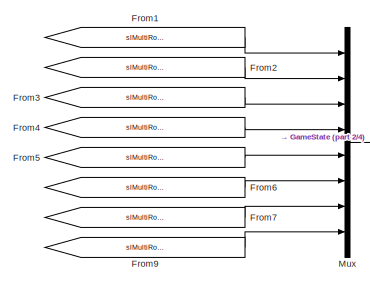
[diagram: root canvas - part 1/4, top center region]
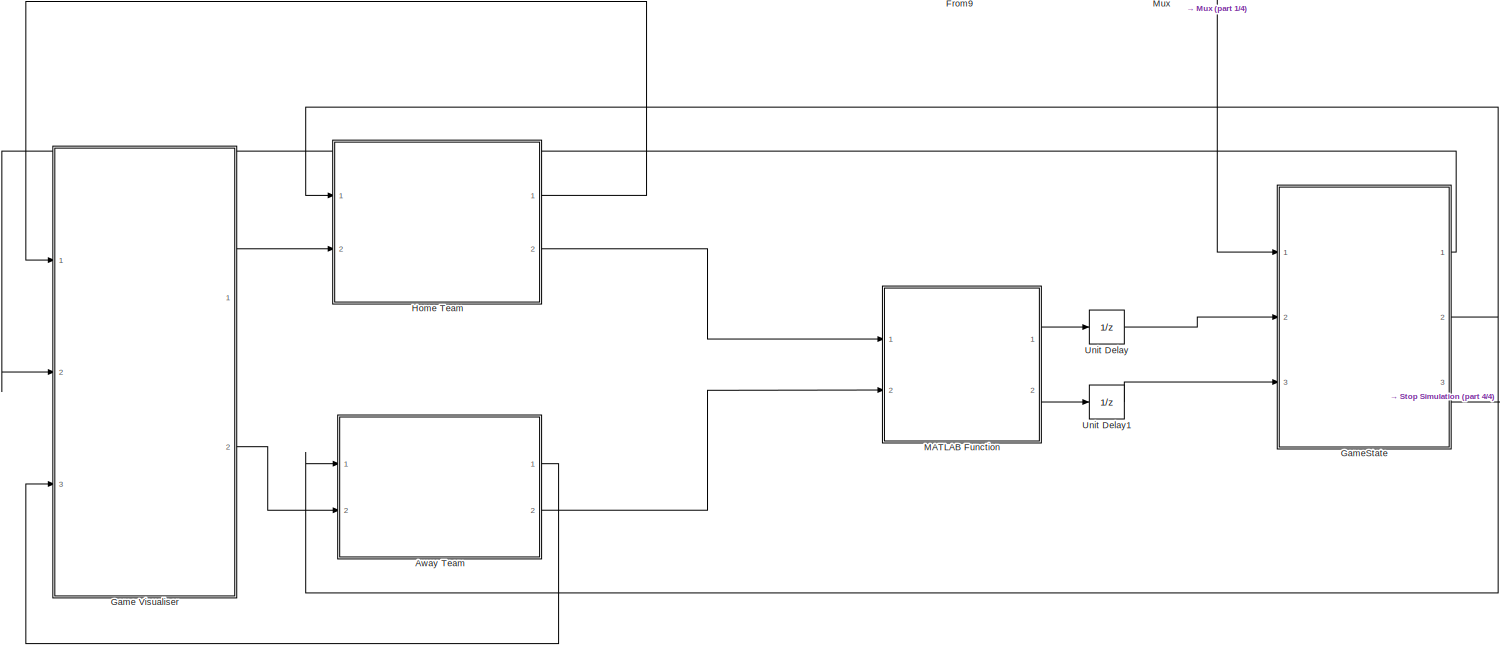
[diagram: root canvas - part 2/4, full width, middle band]
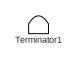
[diagram: root canvas - part 3/4, bottom right region]
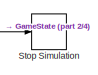
[diagram: root canvas - part 4/4, bottom right region]
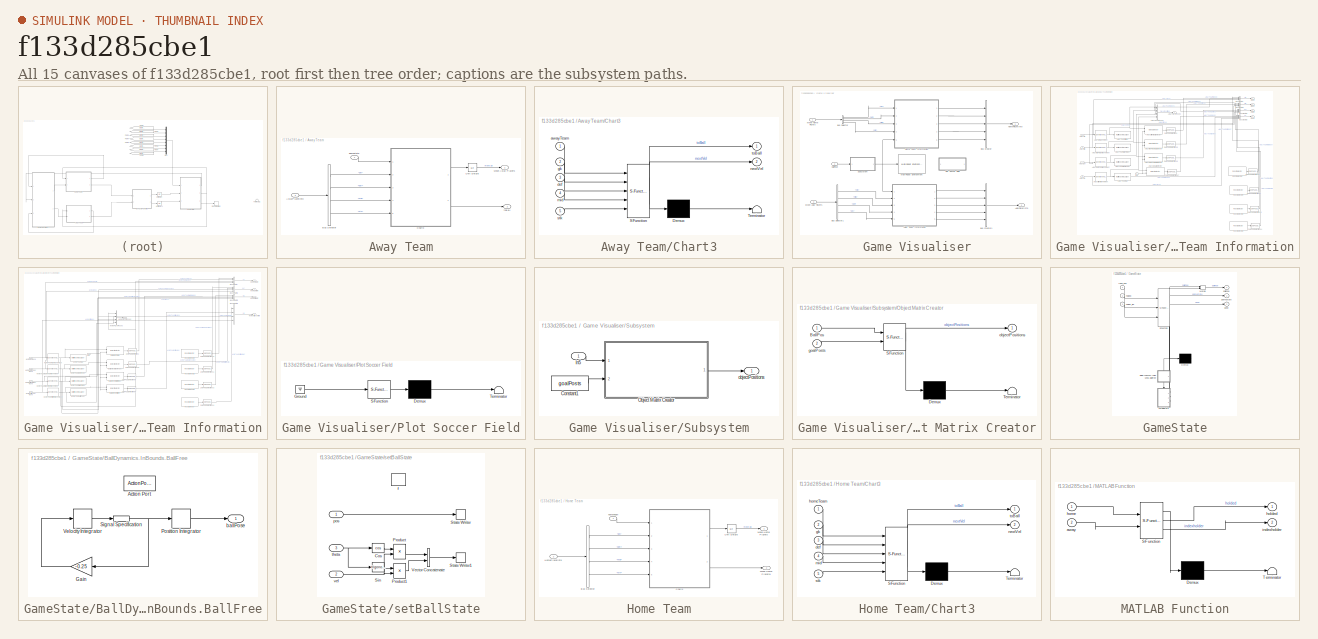
[diagram: thumbnail index - all 15 canvases of the model, root first then tree order]
MODEL slx_f133d285cbe1
KIND model
CONFIG AbsTol = auto
CONFIG EnableMultiTasking = on
CONFIG FixedStep = sampleTime
CONFIG MaxStep = auto
CONFIG MinStep = auto
CONFIG RelTol = 1e-3
CONFIG SampleTimeConstraint = Unconstrained
CONFIG SolverName = FixedStepAuto
CONFIG StartTime = 0.0
CONFIG StopTime = 200
BLOCK [SubSystem] Away Team
  Ports = [2, 2]
  RequestExecContextInheritance = off
BLOCK [Inport] Away Team/AwayPlayerInfo
  Port = 2
BLOCK [BusSelector] Away Team/Bus Selector
  OutputSignals = gk,def,mid,stk
  Ports = [1, 4]
BLOCK [SubSystem] Away Team/Chart3
  ErrorFcn = Stateflow.Translate.translate
  PermitHierarchicalResolution = ExplicitOnly
  PortSchema = {"entries":[{"content":{"sides":[{"content":{"connectorIds":["In1","In2","In3","In4","In5"]},"type":"ConnectorPlacement.EquallySpacedRectSide","uuid":"ebe0e1cb-6371-4bd3-ace0-cc5b71048631"},{"content":{"connectorIds":["Out2","Out1"],"side":"RIGHT"},"type":"ConnectorPlacement.EquallySpacedRectSide","uuid":"57a2731b-5a64-47ed-8ccc-f0829cfb4352"},{"content":{"connectorIds":[],"side":"TOP"},"type":"Co...<+415ch>
  Ports = [5, 2]
  RequestExecContextInheritance = off
  SFBlockType = Chart
  TreatAsAtomicUnit = on
BLOCK [Demux] Away Team/Chart3/ Demux 
  Outputs = 1
  Ports = [1, 1]
BLOCK [S-Function] Away Team/Chart3/ SFunction 
  EnableBusSupport = on
  FunctionName = sf_sfun
  Parameters = angThresh,distThresh,maxSpeed,maxTurnSpeed,playerIdx
  PortCounts = [5 3]
  Ports = [5, 3]
  SFcnIsStateOwnerBlock = off
  SFunctionDeploymentMode = off
  Tag = Stateflow S-Function 1
BLOCK [Terminator] Away Team/Chart3/ Terminator 
BLOCK [Inport] Away Team/Chart3/awayTeam
BLOCK [Inport] Away Team/Chart3/def
  Port = 3
BLOCK [Inport] Away Team/Chart3/gk
  Port = 2
BLOCK [Inport] Away Team/Chart3/mid
  Port = 4
BLOCK [Outport] Away Team/Chart3/nextVel
  Port = 2
BLOCK [Inport] Away Team/Chart3/stk
  Port = 5
BLOCK [Outport] Away Team/Chart3/toBall
BLOCK [Outport] Away Team/Move Away Players
BLOCK [UnitDelay] Away Team/Unit Delay5
  HasFrameUpgradeWarning = on
  SampleTime = -1
BLOCK [Inport] Away Team/gamestate
BLOCK [Outport] Away Team/toBall
  Port = 2
BLOCK [From] From1
  GotoTag = slMultiRobotEnv_Pose_1
  TagVisibility = global
BLOCK [From] From2
  GotoTag = slMultiRobotEnv_Pose_2
  TagVisibility = global
BLOCK [From] From3
  GotoTag = slMultiRobotEnv_Pose_3
  TagVisibility = global
BLOCK [From] From4
  GotoTag = slMultiRobotEnv_Pose_4
  TagVisibility = global
BLOCK [From] From5
  GotoTag = slMultiRobotEnv_Pose_5
  TagVisibility = global
BLOCK [From] From6
  GotoTag = slMultiRobotEnv_Pose_6
  TagVisibility = global
BLOCK [From] From7
  GotoTag = slMultiRobotEnv_Pose_7
  TagVisibility = global
BLOCK [From] From9
  GotoTag = slMultiRobotEnv_Pose_8
  TagVisibility = global
BLOCK [SubSystem] Game Visualiser
  Ports = [3, 2]
  RequestExecContextInheritance = off
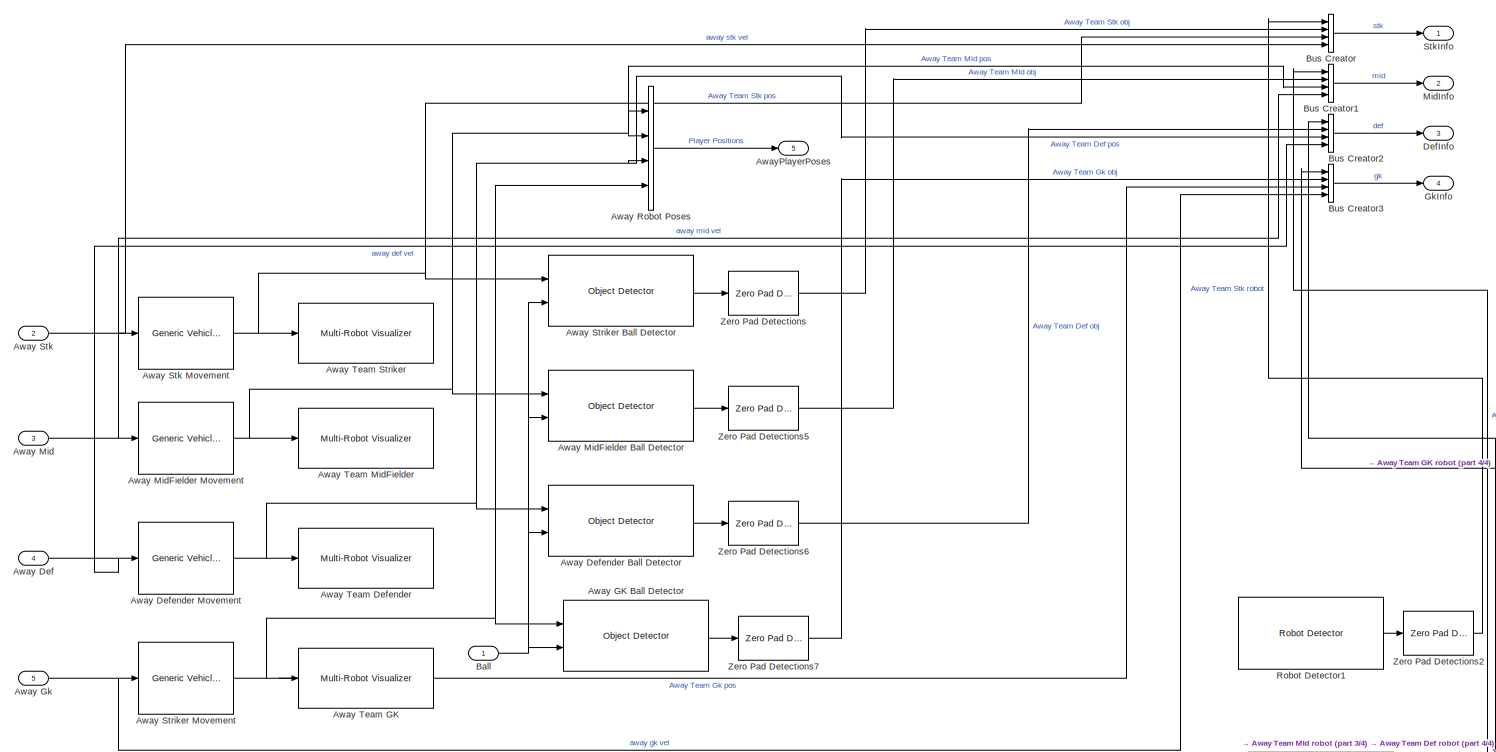
[diagram: Game Visualiser/Away Team Information - part 1/4, full width, middle band]
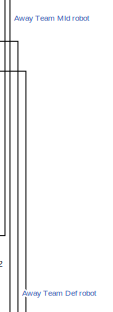
[diagram: Game Visualiser/Away Team Information - part 2/4, middle right region]
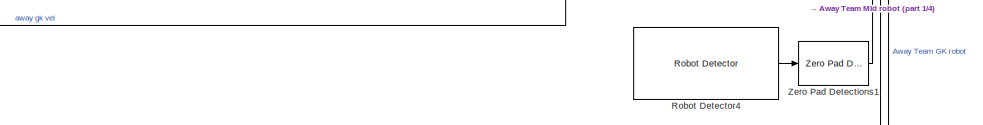
[diagram: Game Visualiser/Away Team Information - part 3/4, bottom right region]
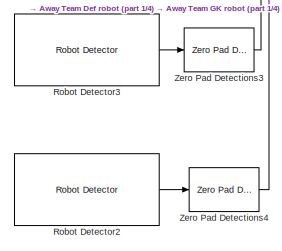
[diagram: Game Visualiser/Away Team Information - part 4/4, bottom right region]
BLOCK [SubSystem] Game Visualiser/Away Team Information
  Ports = [5, 5]
  RequestExecContextInheritance = off
BLOCK [Inport] Game Visualiser/Away Team Information/Away Def
  Port = 4
BLOCK [Reference] Game Visualiser/Away Team Information/Away Defender Ball Detector  REF=mobileRoboticsLib/Environments/Object Detector
  Ports = [2, 1]
  SourceBlock = mobileRoboticsLib/Environments/Object Detector
  SourceProductName = Mobile Robotics Simulation Toolbox
  SourceType = ObjectDetector
BLOCK [Reference] Game Visualiser/Away Team Information/Away Defender Movement  REF=mobileRoboticsLib/Utilities/Generic Vehicle Simulation
  Ports = [1, 1]
  SourceBlock = mobileRoboticsLib/Utilities/Generic Vehicle Simulation
  SourceProductName = Mobile Robotics Simulation Toolbox
  SourceType = Generic Vehicle Simulation
BLOCK [Reference] Game Visualiser/Away Team Information/Away GK Ball Detector  REF=mobileRoboticsLib/Environments/Object Detector
  Ports = [2, 1]
  SourceBlock = mobileRoboticsLib/Environments/Object Detector
  SourceProductName = Mobile Robotics Simulation Toolbox
  SourceType = ObjectDetector
BLOCK [Inport] Game Visualiser/Away Team Information/Away Gk 
  Port = 5
BLOCK [Inport] Game Visualiser/Away Team Information/Away Mid
  Port = 3
BLOCK [Reference] Game Visualiser/Away Team Information/Away MidFielder Ball Detector  REF=mobileRoboticsLib/Environments/Object Detector
  Ports = [2, 1]
  SourceBlock = mobileRoboticsLib/Environments/Object Detector
  SourceProductName = Mobile Robotics Simulation Toolbox
  SourceType = ObjectDetector
BLOCK [Reference] Game Visualiser/Away Team Information/Away MidFielder Movement  REF=mobileRoboticsLib/Utilities/Generic Vehicle Simulation
  Ports = [1, 1]
  SourceBlock = mobileRoboticsLib/Utilities/Generic Vehicle Simulation
  SourceProductName = Mobile Robotics Simulation Toolbox
  SourceType = Generic Vehicle Simulation
BLOCK [BusCreator] Game Visualiser/Away Team Information/Away Robot Poses
  DisplayOption = bar
  InheritFromInputs = on
  Inputs = 4
  Ports = [4, 1]
BLOCK [Inport] Game Visualiser/Away Team Information/Away Stk
  Port = 2
BLOCK [Reference] Game Visualiser/Away Team Information/Away Stk Movement  REF=mobileRoboticsLib/Utilities/Generic Vehicle Simulation
  Ports = [1, 1]
  SourceBlock = mobileRoboticsLib/Utilities/Generic Vehicle Simulation
  SourceProductName = Mobile Robotics Simulation Toolbox
  SourceType = Generic Vehicle Simulation
BLOCK [Reference] Game Visualiser/Away Team Information/Away Striker Ball Detector  REF=mobileRoboticsLib/Environments/Object Detector
  Ports = [2, 1]
  SourceBlock = mobileRoboticsLib/Environments/Object Detector
  SourceProductName = Mobile Robotics Simulation Toolbox
  SourceType = ObjectDetector
BLOCK [Reference] Game Visualiser/Away Team Information/Away Striker Movement  REF=mobileRoboticsLib/Utilities/Generic Vehicle Simulation
  Ports = [1, 1]
  SourceBlock = mobileRoboticsLib/Utilities/Generic Vehicle Simulation
  SourceProductName = Mobile Robotics Simulation Toolbox
  SourceType = Generic Vehicle Simulation
BLOCK [Reference] Game Visualiser/Away Team Information/Away Team Defender  REF=mobileRoboticsLib/Environments/Multi-Robot Visualizer
  Ports = [1]
  SourceBlock = mobileRoboticsLib/Environments/Multi-Robot Visualizer
  SourceProductName = Mobile Robotics Simulation Toolbox
  SourceType = Multi-Robot Visualizer
BLOCK [Reference] Game Visualiser/Away Team Information/Away Team GK  REF=mobileRoboticsLib/Environments/Multi-Robot Visualizer
  Ports = [1]
  SourceBlock = mobileRoboticsLib/Environments/Multi-Robot Visualizer
  SourceProductName = Mobile Robotics Simulation Toolbox
  SourceType = Multi-Robot Visualizer
BLOCK [Reference] Game Visualiser/Away Team Information/Away Team MidFielder  REF=mobileRoboticsLib/Environments/Multi-Robot Visualizer
  Ports = [1]
  SourceBlock = mobileRoboticsLib/Environments/Multi-Robot Visualizer
  SourceProductName = Mobile Robotics Simulation Toolbox
  SourceType = Multi-Robot Visualizer
BLOCK [Reference] Game Visualiser/Away Team Information/Away Team Striker  REF=mobileRoboticsLib/Environments/Multi-Robot Visualizer
  Ports = [1]
  SourceBlock = mobileRoboticsLib/Environments/Multi-Robot Visualizer
  SourceProductName = Mobile Robotics Simulation Toolbox
  SourceType = Multi-Robot Visualizer
BLOCK [Outport] Game Visualiser/Away Team Information/AwayPlayerPoses
  Port = 5
BLOCK [Inport] Game Visualiser/Away Team Information/Ball
BLOCK [BusCreator] Game Visualiser/Away Team Information/Bus Creator
  DisplayOption = bar
  InheritFromInputs = off
  Inputs = 4
  OutDataTypeStr = Bus: PlayerStateBus
  Ports = [4, 1]
BLOCK [BusCreator] Game Visualiser/Away Team Information/Bus Creator1
  DisplayOption = bar
  InheritFromInputs = off
  Inputs = 4
  OutDataTypeStr = Bus: PlayerStateBus
  Ports = [4, 1]
BLOCK [BusCreator] Game Visualiser/Away Team Information/Bus Creator2
  DisplayOption = bar
  InheritFromInputs = off
  Inputs = 4
  OutDataTypeStr = Bus: PlayerStateBus
  Ports = [4, 1]
BLOCK [BusCreator] Game Visualiser/Away Team Information/Bus Creator3
  DisplayOption = bar
  InheritFromInputs = off
  Inputs = 4
  OutDataTypeStr = Bus: PlayerStateBus
  Ports = [4, 1]
BLOCK [Outport] Game Visualiser/Away Team Information/DefInfo
  Port = 3
BLOCK [Outport] Game Visualiser/Away Team Information/GkInfo
  Port = 4
BLOCK [Outport] Game Visualiser/Away Team Information/MidInfo
  Port = 2
BLOCK [Reference] Game Visualiser/Away Team Information/Robot Detector1  REF=mobileRoboticsLib/Environments/Robot Detector
  Ports = [0, 1]
  SourceBlock = mobileRoboticsLib/Environments/Robot Detector
  SourceProductName = Mobile Robotics Simulation Toolbox
  SourceType = Robot Detector
BLOCK [Reference] Game Visualiser/Away Team Information/Robot Detector2  REF=mobileRoboticsLib/Environments/Robot Detector
  Ports = [0, 1]
  SourceBlock = mobileRoboticsLib/Environments/Robot Detector
  SourceProductName = Mobile Robotics Simulation Toolbox
  SourceType = Robot Detector
BLOCK [Reference] Game Visualiser/Away Team Information/Robot Detector3  REF=mobileRoboticsLib/Environments/Robot Detector
  Ports = [0, 1]
  SourceBlock = mobileRoboticsLib/Environments/Robot Detector
  SourceProductName = Mobile Robotics Simulation Toolbox
  SourceType = Robot Detector
BLOCK [Reference] Game Visualiser/Away Team Information/Robot Detector4  REF=mobileRoboticsLib/Environments/Robot Detector
  Ports = [0, 1]
  SourceBlock = mobileRoboticsLib/Environments/Robot Detector
  SourceProductName = Mobile Robotics Simulation Toolbox
  SourceType = Robot Detector
BLOCK [Outport] Game Visualiser/Away Team Information/StkInfo
BLOCK [Reference] Game Visualiser/Away Team Information/Zero Pad Detections  REF=soccerRobotLib/Soccer Robot Simulator/Zero Pad Detections
  Ports = [1, 1]
  SourceBlock = soccerRobotLib/Soccer Robot Simulator/Zero Pad Detections
  SourceType = Zero Pad Detections
BLOCK [Reference] Game Visualiser/Away Team Information/Zero Pad Detections1  REF=soccerRobotLib/Soccer Robot Simulator/Zero Pad Detections
  Ports = [1, 1]
  SourceBlock = soccerRobotLib/Soccer Robot Simulator/Zero Pad Detections
  SourceType = Zero Pad Detections
BLOCK [Reference] Game Visualiser/Away Team Information/Zero Pad Detections2  REF=soccerRobotLib/Soccer Robot Simulator/Zero Pad Detections
  Ports = [1, 1]
  SourceBlock = soccerRobotLib/Soccer Robot Simulator/Zero Pad Detections
  SourceType = Zero Pad Detections
BLOCK [Reference] Game Visualiser/Away Team Information/Zero Pad Detections3  REF=soccerRobotLib/Soccer Robot Simulator/Zero Pad Detections
  Ports = [1, 1]
  SourceBlock = soccerRobotLib/Soccer Robot Simulator/Zero Pad Detections
  SourceType = Zero Pad Detections
BLOCK [Reference] Game Visualiser/Away Team Information/Zero Pad Detections4  REF=soccerRobotLib/Soccer Robot Simulator/Zero Pad Detections
  Ports = [1, 1]
  SourceBlock = soccerRobotLib/Soccer Robot Simulator/Zero Pad Detections
  SourceType = Zero Pad Detections
BLOCK [Reference] Game Visualiser/Away Team Information/Zero Pad Detections5  REF=soccerRobotLib/Soccer Robot Simulator/Zero Pad Detections
  Ports = [1, 1]
  SourceBlock = soccerRobotLib/Soccer Robot Simulator/Zero Pad Detections
  SourceType = Zero Pad Detections
BLOCK [Reference] Game Visualiser/Away Team Information/Zero Pad Detections6  REF=soccerRobotLib/Soccer Robot Simulator/Zero Pad Detections
  Ports = [1, 1]
  SourceBlock = soccerRobotLib/Soccer Robot Simulator/Zero Pad Detections
  SourceType = Zero Pad Detections
BLOCK [Reference] Game Visualiser/Away Team Information/Zero Pad Detections7  REF=soccerRobotLib/Soccer Robot Simulator/Zero Pad Detections
  Ports = [1, 1]
  SourceBlock = soccerRobotLib/Soccer Robot Simulator/Zero Pad Detections
  SourceType = Zero Pad Detections
BLOCK [Outport] Game Visualiser/AwayPlayerInfo
  Port = 2
BLOCK [BusCreator] Game Visualiser/Bus Creator
  DisplayOption = bar
  InheritFromInputs = on
  Inputs = 5
  Ports = [5, 1]
BLOCK [BusCreator] Game Visualiser/Bus Creator1
  DisplayOption = bar
  InheritFromInputs = on
  Inputs = 5
  Ports = [5, 1]
BLOCK [BusSelector] Game Visualiser/Bus Selector
  OutputSignals = gk,def,mid,stk
  Ports = [1, 4]
BLOCK [BusSelector] Game Visualiser/Bus Selector1
  OutputSignals = stk,mid,def,gk
  Ports = [1, 4]
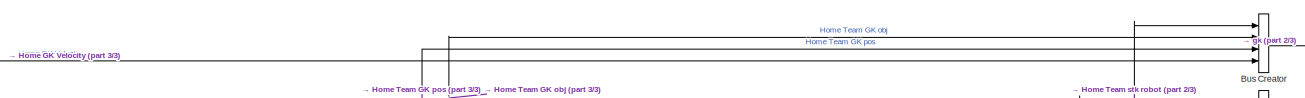
[diagram: Game Visualiser/Home Team Information - part 1/3, top center region]
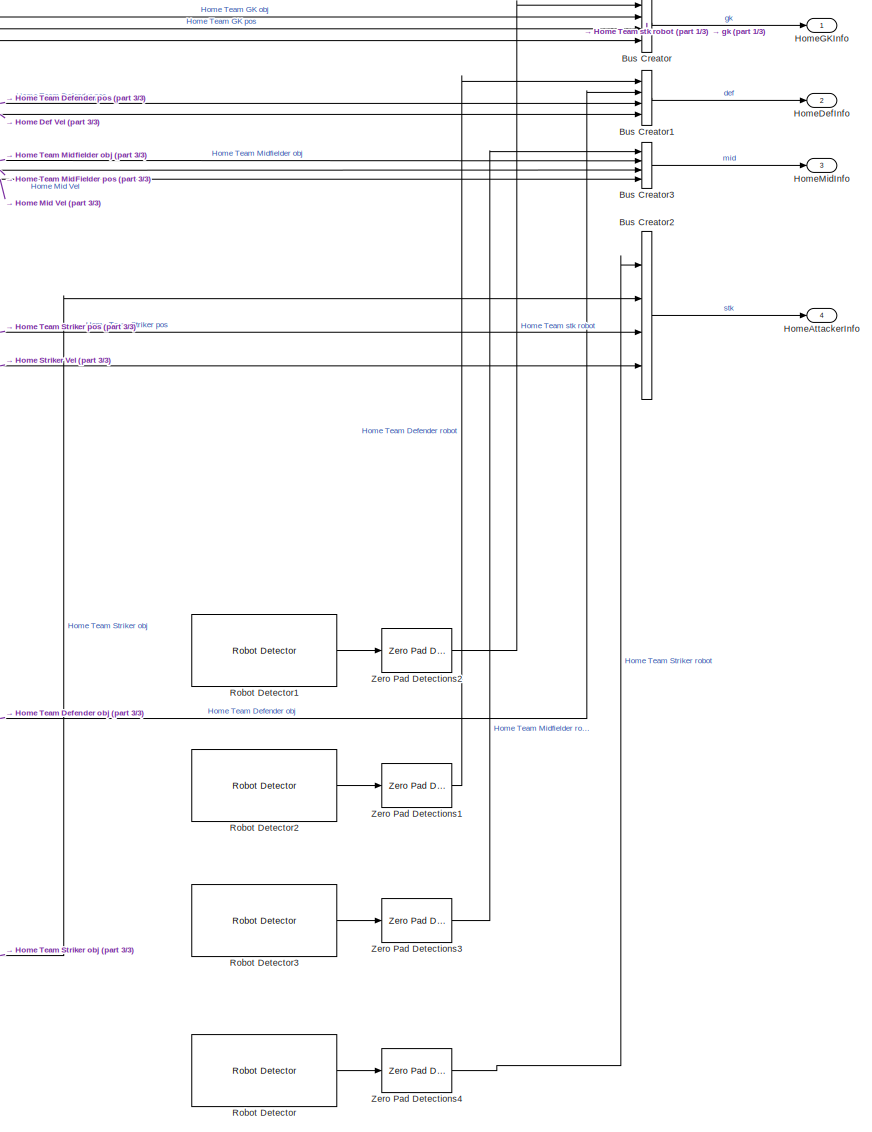
[diagram: Game Visualiser/Home Team Information - part 2/3, right side, full height]
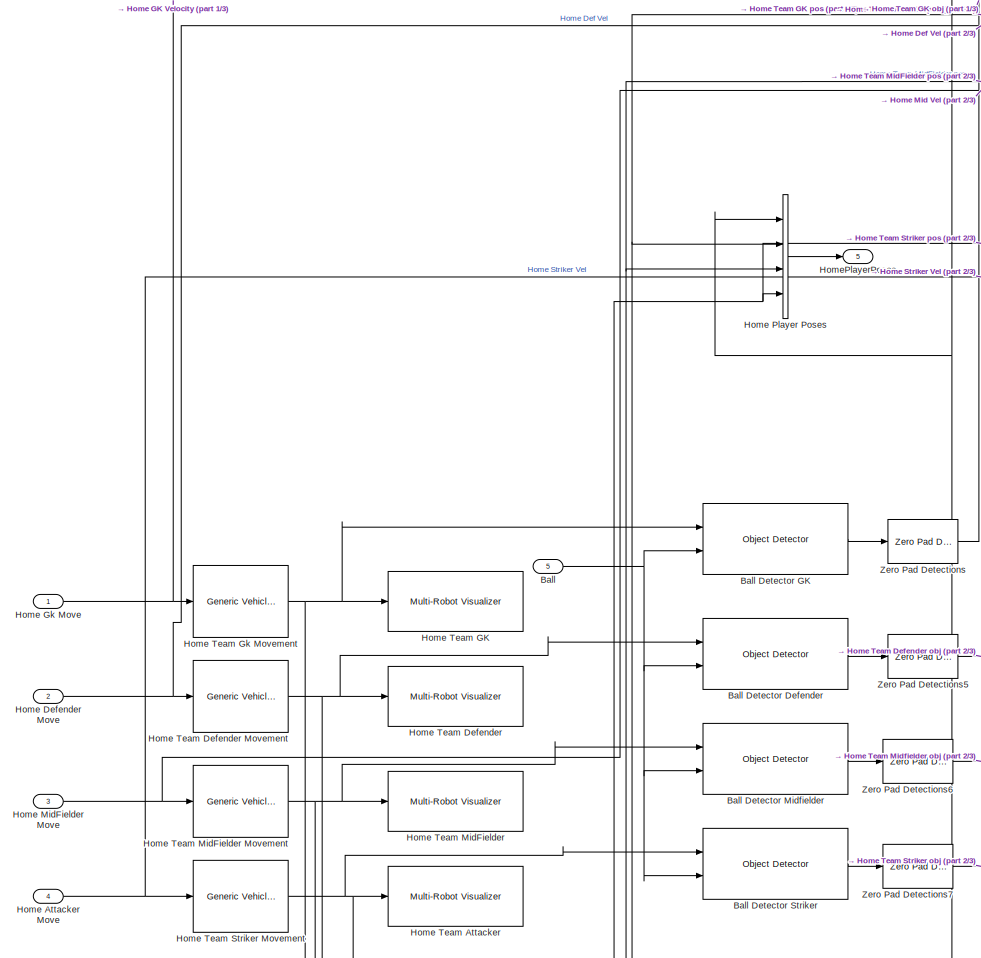
[diagram: Game Visualiser/Home Team Information - part 3/3, left side, full height]
BLOCK [SubSystem] Game Visualiser/Home Team Information
  Ports = [5, 5]
  RequestExecContextInheritance = off
BLOCK [Inport] Game Visualiser/Home Team Information/Ball
  Port = 5
BLOCK [Reference] Game Visualiser/Home Team Information/Ball Detector Defender  REF=mobileRoboticsLib/Environments/Object Detector
  Ports = [2, 1]
  SourceBlock = mobileRoboticsLib/Environments/Object Detector
  SourceProductName = Mobile Robotics Simulation Toolbox
  SourceType = ObjectDetector
BLOCK [Reference] Game Visualiser/Home Team Information/Ball Detector GK  REF=mobileRoboticsLib/Environments/Object Detector
  Ports = [2, 1]
  SourceBlock = mobileRoboticsLib/Environments/Object Detector
  SourceProductName = Mobile Robotics Simulation Toolbox
  SourceType = ObjectDetector
BLOCK [Reference] Game Visualiser/Home Team Information/Ball Detector Midfielder  REF=mobileRoboticsLib/Environments/Object Detector
  Ports = [2, 1]
  SourceBlock = mobileRoboticsLib/Environments/Object Detector
  SourceProductName = Mobile Robotics Simulation Toolbox
  SourceType = ObjectDetector
BLOCK [Reference] Game Visualiser/Home Team Information/Ball Detector Striker  REF=mobileRoboticsLib/Environments/Object Detector
  Ports = [2, 1]
  SourceBlock = mobileRoboticsLib/Environments/Object Detector
  SourceProductName = Mobile Robotics Simulation Toolbox
  SourceType = ObjectDetector
BLOCK [BusCreator] Game Visualiser/Home Team Information/Bus Creator
  DisplayOption = bar
  InheritFromInputs = off
  Inputs = 4
  OutDataTypeStr = Bus: PlayerStateBus
  Ports = [4, 1]
BLOCK [BusCreator] Game Visualiser/Home Team Information/Bus Creator1
  DisplayOption = bar
  InheritFromInputs = on
  Inputs = 4
  OutDataTypeStr = Bus: PlayerStateBus
  Ports = [4, 1]
BLOCK [BusCreator] Game Visualiser/Home Team Information/Bus Creator2
  DisplayOption = bar
  InheritFromInputs = on
  Inputs = 4
  OutDataTypeStr = Bus: PlayerStateBus
  Ports = [4, 1]
BLOCK [BusCreator] Game Visualiser/Home Team Information/Bus Creator3
  DisplayOption = bar
  InheritFromInputs = on
  Inputs = 4
  OutDataTypeStr = Bus: PlayerStateBus
  Ports = [4, 1]
BLOCK [Inport] Game Visualiser/Home Team Information/Home Attacker Move
  Port = 4
BLOCK [Inport] Game Visualiser/Home Team Information/Home Defender Move
  Port = 2
BLOCK [Inport] Game Visualiser/Home Team Information/Home Gk Move
BLOCK [Inport] Game Visualiser/Home Team Information/Home MidFielder Move
  Port = 3
BLOCK [BusCreator] Game Visualiser/Home Team Information/Home Player Poses
  DisplayOption = bar
  InheritFromInputs = on
  Inputs = 4
  Ports = [4, 1]
BLOCK [Reference] Game Visualiser/Home Team Information/Home Team Attacker  REF=mobileRoboticsLib/Environments/Multi-Robot Visualizer
  Ports = [1]
  SourceBlock = mobileRoboticsLib/Environments/Multi-Robot Visualizer
  SourceProductName = Mobile Robotics Simulation Toolbox
  SourceType = Multi-Robot Visualizer
BLOCK [Reference] Game Visualiser/Home Team Information/Home Team Defender  REF=mobileRoboticsLib/Environments/Multi-Robot Visualizer
  Ports = [1]
  SourceBlock = mobileRoboticsLib/Environments/Multi-Robot Visualizer
  SourceProductName = Mobile Robotics Simulation Toolbox
  SourceType = Multi-Robot Visualizer
BLOCK [Reference] Game Visualiser/Home Team Information/Home Team Defender Movement  REF=mobileRoboticsLib/Utilities/Generic Vehicle Simulation
  Ports = [1, 1]
  SourceBlock = mobileRoboticsLib/Utilities/Generic Vehicle Simulation
  SourceProductName = Mobile Robotics Simulation Toolbox
  SourceType = Generic Vehicle Simulation
BLOCK [Reference] Game Visualiser/Home Team Information/Home Team GK  REF=mobileRoboticsLib/Environments/Multi-Robot Visualizer
  Ports = [1]
  SourceBlock = mobileRoboticsLib/Environments/Multi-Robot Visualizer
  SourceProductName = Mobile Robotics Simulation Toolbox
  SourceType = Multi-Robot Visualizer
BLOCK [Reference] Game Visualiser/Home Team Information/Home Team Gk Movement  REF=mobileRoboticsLib/Utilities/Generic Vehicle Simulation
  Ports = [1, 1]
  SourceBlock = mobileRoboticsLib/Utilities/Generic Vehicle Simulation
  SourceProductName = Mobile Robotics Simulation Toolbox
  SourceType = Generic Vehicle Simulation
BLOCK [Reference] Game Visualiser/Home Team Information/Home Team MidFielder  REF=mobileRoboticsLib/Environments/Multi-Robot Visualizer
  Ports = [1]
  SourceBlock = mobileRoboticsLib/Environments/Multi-Robot Visualizer
  SourceProductName = Mobile Robotics Simulation Toolbox
  SourceType = Multi-Robot Visualizer
BLOCK [Reference] Game Visualiser/Home Team Information/Home Team MidFielder Movement  REF=mobileRoboticsLib/Utilities/Generic Vehicle Simulation
  Ports = [1, 1]
  SourceBlock = mobileRoboticsLib/Utilities/Generic Vehicle Simulation
  SourceProductName = Mobile Robotics Simulation Toolbox
  SourceType = Generic Vehicle Simulation
BLOCK [Reference] Game Visualiser/Home Team Information/Home Team Striker Movement  REF=mobileRoboticsLib/Utilities/Generic Vehicle Simulation
  Ports = [1, 1]
  SourceBlock = mobileRoboticsLib/Utilities/Generic Vehicle Simulation
  SourceProductName = Mobile Robotics Simulation Toolbox
  SourceType = Generic Vehicle Simulation
BLOCK [Outport] Game Visualiser/Home Team Information/HomeAttackerInfo
  Port = 4
BLOCK [Outport] Game Visualiser/Home Team Information/HomeDefInfo
  Port = 2
BLOCK [Outport] Game Visualiser/Home Team Information/HomeGKInfo
BLOCK [Outport] Game Visualiser/Home Team Information/HomeMidInfo
  Port = 3
BLOCK [Outport] Game Visualiser/Home Team Information/HomePlayerPoses
  Port = 5
BLOCK [Reference] Game Visualiser/Home Team Information/Robot Detector  REF=mobileRoboticsLib/Environments/Robot Detector
  Ports = [0, 1]
  SourceBlock = mobileRoboticsLib/Environments/Robot Detector
  SourceProductName = Mobile Robotics Simulation Toolbox
  SourceType = Robot Detector
BLOCK [Reference] Game Visualiser/Home Team Information/Robot Detector1  REF=mobileRoboticsLib/Environments/Robot Detector
  Ports = [0, 1]
  SourceBlock = mobileRoboticsLib/Environments/Robot Detector
  SourceProductName = Mobile Robotics Simulation Toolbox
  SourceType = Robot Detector
BLOCK [Reference] Game Visualiser/Home Team Information/Robot Detector2  REF=mobileRoboticsLib/Environments/Robot Detector
  Ports = [0, 1]
  SourceBlock = mobileRoboticsLib/Environments/Robot Detector
  SourceProductName = Mobile Robotics Simulation Toolbox
  SourceType = Robot Detector
BLOCK [Reference] Game Visualiser/Home Team Information/Robot Detector3  REF=mobileRoboticsLib/Environments/Robot Detector
  Ports = [0, 1]
  SourceBlock = mobileRoboticsLib/Environments/Robot Detector
  SourceProductName = Mobile Robotics Simulation Toolbox
  SourceType = Robot Detector
BLOCK [Reference] Game Visualiser/Home Team Information/Zero Pad Detections  REF=soccerRobotLib/Soccer Robot Simulator/Zero Pad Detections
  Ports = [1, 1]
  SourceBlock = soccerRobotLib/Soccer Robot Simulator/Zero Pad Detections
  SourceType = Zero Pad Detections
BLOCK [Reference] Game Visualiser/Home Team Information/Zero Pad Detections1  REF=soccerRobotLib/Soccer Robot Simulator/Zero Pad Detections
  Ports = [1, 1]
  SourceBlock = soccerRobotLib/Soccer Robot Simulator/Zero Pad Detections
  SourceType = Zero Pad Detections
BLOCK [Reference] Game Visualiser/Home Team Information/Zero Pad Detections2  REF=soccerRobotLib/Soccer Robot Simulator/Zero Pad Detections
  Ports = [1, 1]
  SourceBlock = soccerRobotLib/Soccer Robot Simulator/Zero Pad Detections
  SourceType = Zero Pad Detections
BLOCK [Reference] Game Visualiser/Home Team Information/Zero Pad Detections3  REF=soccerRobotLib/Soccer Robot Simulator/Zero Pad Detections
  Ports = [1, 1]
  SourceBlock = soccerRobotLib/Soccer Robot Simulator/Zero Pad Detections
  SourceType = Zero Pad Detections
BLOCK [Reference] Game Visualiser/Home Team Information/Zero Pad Detections4  REF=soccerRobotLib/Soccer Robot Simulator/Zero Pad Detections
  Ports = [1, 1]
  SourceBlock = soccerRobotLib/Soccer Robot Simulator/Zero Pad Detections
  SourceType = Zero Pad Detections
BLOCK [Reference] Game Visualiser/Home Team Information/Zero Pad Detections5  REF=soccerRobotLib/Soccer Robot Simulator/Zero Pad Detections
  Ports = [1, 1]
  SourceBlock = soccerRobotLib/Soccer Robot Simulator/Zero Pad Detections
  SourceType = Zero Pad Detections
BLOCK [Reference] Game Visualiser/Home Team Information/Zero Pad Detections6  REF=soccerRobotLib/Soccer Robot Simulator/Zero Pad Detections
  Ports = [1, 1]
  SourceBlock = soccerRobotLib/Soccer Robot Simulator/Zero Pad Detections
  SourceType = Zero Pad Detections
BLOCK [Reference] Game Visualiser/Home Team Information/Zero Pad Detections7  REF=soccerRobotLib/Soccer Robot Simulator/Zero Pad Detections
  Ports = [1, 1]
  SourceBlock = soccerRobotLib/Soccer Robot Simulator/Zero Pad Detections
  SourceType = Zero Pad Detections
BLOCK [Outport] Game Visualiser/HomePlayerInfo
BLOCK [Inport] Game Visualiser/Move Away Players
  Port = 3
BLOCK [Inport] Game Visualiser/Move Home Players
BLOCK [Reference] Game Visualiser/Multi-Robot Environment  REF=mobileRoboticsLib/Environments/Multi-Robot Environment
  Ports = [1]
  SourceBlock = mobileRoboticsLib/Environments/Multi-Robot Environment
  SourceProductName = Mobile Robotics Simulation Toolbox
  SourceType = Multi-Robot Environment
BLOCK [SubSystem] Game Visualiser/Plot Soccer Field
  ErrorFcn = Stateflow.Translate.translate
  PermitHierarchicalResolution = ExplicitOnly
  Ports = []
  RequestExecContextInheritance = off
  SFBlockType = MATLAB Function
  TreatAsAtomicUnit = on
BLOCK [Demux] Game Visualiser/Plot Soccer Field/ Demux 
  Outputs = 1
  Ports = [1, 1]
BLOCK [Ground] Game Visualiser/Plot Soccer Field/ Ground 
BLOCK [S-Function] Game Visualiser/Plot Soccer Field/ SFunction 
  EnableBusSupport = on
  FunctionName = sf_sfun
  PortCounts = [1 1]
  Ports = [1, 1]
  SFcnIsStateOwnerBlock = off
  SFunctionDeploymentMode = off
  Tag = Stateflow S-Function 2
BLOCK [Terminator] Game Visualiser/Plot Soccer Field/ Terminator 
BLOCK [SubSystem] Game Visualiser/Subsystem
  Ports = [1, 1]
  RequestExecContextInheritance = off
BLOCK [Constant] Game Visualiser/Subsystem/Constant1
  Value = goalPosts
BLOCK [Inport] Game Visualiser/Subsystem/In5
BLOCK [SubSystem] Game Visualiser/Subsystem/Object Matrix Creator
  ErrorFcn = Stateflow.Translate.translate
  PermitHierarchicalResolution = ExplicitOnly
  Ports = [2, 1]
  RequestExecContextInheritance = off
  SFBlockType = MATLAB Function
  TreatAsAtomicUnit = on
BLOCK [Demux] Game Visualiser/Subsystem/Object Matrix Creator/ Demux 
  Outputs = 1
  Ports = [1, 1]
BLOCK [S-Function] Game Visualiser/Subsystem/Object Matrix Creator/ SFunction 
  EnableBusSupport = on
  FunctionName = sf_sfun
  PortCounts = [2 2]
  Ports = [2, 2]
  SFcnIsStateOwnerBlock = off
  SFunctionDeploymentMode = off
  Tag = Stateflow S-Function 3
BLOCK [Terminator] Game Visualiser/Subsystem/Object Matrix Creator/ Terminator 
BLOCK [Inport] Game Visualiser/Subsystem/Object Matrix Creator/BallPos
BLOCK [Inport] Game Visualiser/Subsystem/Object Matrix Creator/goalPosts
  Port = 2
BLOCK [Outport] Game Visualiser/Subsystem/Object Matrix Creator/objectPositions
BLOCK [Outport] Game Visualiser/Subsystem/objectPositions
BLOCK [Inport] Game Visualiser/ballPose
  Port = 2
BLOCK [SubSystem] GameState
  ErrorFcn = Stateflow.Translate.translate
  PermitHierarchicalResolution = ExplicitOnly
  Ports = [3, 3]
  RequestExecContextInheritance = off
  SFBlockType = Chart
  TreatAsAtomicUnit = on
BLOCK [Demux] GameState/ Demux 
  Outputs = 1
  Ports = [1, 1]
BLOCK [Merge] GameState/ Merge 
  Ports = [2, 1]
BLOCK [S-Function] GameState/ SFunction 
  EnableBusSupport = on
  FunctionName = sf_sfun
  Parameters = attackerKickSpeed,ballAngleNoise,ballThresh,ballVelNoise,fieldCenter,fieldLimitsX,fieldLimitsY,goalPosts,playerRadius
  PortCounts = [3 7]
  Ports = [3, 7]
  SFcnIsStateOwnerBlock = off
  SFunctionDeploymentMode = off
  Tag = Stateflow S-Function 11
BLOCK [SubSystem] GameState/BallDynamics.InBounds.BallFree
  Ports = [0, 1, 0, 0, 0, 0, 0, 1]
  PreDeleteFcn = Stateflow.SLINSF.SimulinkMan.removePreDeleteFcn
  RequestExecContextInheritance = off
  UndoDeleteFcn = Stateflow.SLINSF.SimulinkMan.restorePreDeleteFcn
BLOCK [ActionPort] GameState/BallDynamics.InBounds.BallFree/Action Port
  CopyFcn = Stateflow.SLINSF.SimulinkMan.removeBlockPreDeleteFcn
  PreDeleteFcn = Stateflow.SLINSF.SimulinkMan.unsafePredeleteFcn
BLOCK [Gain] GameState/BallDynamics.InBounds.BallFree/Gain
  Gain = -0.25
  NameLocation = top
BLOCK [DiscreteIntegrator] GameState/BallDynamics.InBounds.BallFree/Position Integrator
  ICPrevOutput = DiscIntNeverNeededParam
  ICPrevScaledInput = DiscIntNeverNeededParam
  InitialCondition = fieldCenter
  InitialConditionSetting = Auto
  Ports = [1, 1]
  SampleTime = -1
  StateName = ballPos
BLOCK [SignalSpecification] GameState/BallDynamics.InBounds.BallFree/Signal Specification
  Dimensions = [1 2]
BLOCK [DiscreteIntegrator] GameState/BallDynamics.InBounds.BallFree/Velocity Integrator
  ICPrevOutput = DiscIntNeverNeededParam
  ICPrevScaledInput = DiscIntNeverNeededParam
  InitialCondition = [0 0]
  InitialConditionSetting = Auto
  Ports = [1, 1]
  SampleTime = -1
  StateName = ballVel
BLOCK [Outport] GameState/BallDynamics.InBounds.BallFree/ballPose
  VectorParamsAs1DForOutWhenUnconnected = off
BLOCK [Outport] GameState/ballPose
BLOCK [Outport] GameState/done
  Port = 3
BLOCK [Outport] GameState/gamestate
  Port = 2
BLOCK [Inport] GameState/holded
  Port = 2
BLOCK [Inport] GameState/holder_idx
  Port = 3
BLOCK [Inport] GameState/robo_pos
BLOCK [SubSystem] GameState/setBallState
  Ports = [3, 0, 0, 1]
  PreDeleteFcn = Stateflow.SLINSF.SimulinkMan.removePreDeleteFcn
  RequestExecContextInheritance = off
  UndoDeleteFcn = Stateflow.SLINSF.SimulinkMan.restorePreDeleteFcn
BLOCK [Trigonometry] GameState/setBallState/Cos
  Operator = cos
  Ports = [1, 1]
BLOCK [Product] GameState/setBallState/Product
  Ports = [2, 1]
BLOCK [Product] GameState/setBallState/Product1
  Ports = [2, 1]
BLOCK [Trigonometry] GameState/setBallState/Sin
  Ports = [1, 1]
BLOCK [StateWriter] GameState/setBallState/State Writer
  StateName = ballPos
  StateOwnerBlock = ../../BallDynamics.InBounds.BallFree/Position Integrator
BLOCK [StateWriter] GameState/setBallState/State Writer1
  StateName = ballVel
  StateOwnerBlock = ../../BallDynamics.InBounds.BallFree/Velocity Integrator
BLOCK [Concatenate] GameState/setBallState/Vector Concatenate
  ConcatenateDimension = 2
  Mode = Multidimensional array
  Ports = [2, 1]
BLOCK [TriggerPort] GameState/setBallState/f
  CopyFcn = Stateflow.SLINSF.SimulinkMan.removeBlockPreDeleteFcn
  Ports = []
  PreDeleteFcn = Stateflow.SLINSF.SimulinkMan.unsafePredeleteFcn
  StatesWhenEnabling = held
  TriggerType = function-call
  VariantControl = (inherit)
BLOCK [Inport] GameState/setBallState/pos
  OutDataTypeStr = double
  PortDimensions = [1 2]
  SignalType = real
  VarSizeSig = No
BLOCK [Inport] GameState/setBallState/theta
  OutDataTypeStr = double
  Port = 3
  PortDimensions = 1
  SignalType = real
  VarSizeSig = No
BLOCK [Inport] GameState/setBallState/vel
  OutDataTypeStr = double
  Port = 2
  PortDimensions = 1
  SignalType = real
  VarSizeSig = No
BLOCK [SubSystem] Home Team
  Ports = [2, 2]
  RequestExecContextInheritance = off
BLOCK [BusSelector] Home Team/Bus Selector
  OutputSignals = gk,def,mid,stk
  Ports = [1, 4]
BLOCK [SubSystem] Home Team/Chart3
  ErrorFcn = Stateflow.Translate.translate
  PermitHierarchicalResolution = ExplicitOnly
  PortSchema = {"entries":[{"content":{"sides":[{"content":{"connectorIds":["In1","In2","In3","In4","In5"]},"type":"ConnectorPlacement.EquallySpacedRectSide","uuid":"ebe0e1cb-6371-4bd3-ace0-cc5b71048631"},{"content":{"connectorIds":["Out2","Out1"],"side":"RIGHT"},"type":"ConnectorPlacement.EquallySpacedRectSide","uuid":"57a2731b-5a64-47ed-8ccc-f0829cfb4352"},{"content":{"connectorIds":[],"side":"TOP"},"type":"Co...<+415ch>
  Ports = [5, 2]
  RequestExecContextInheritance = off
  SFBlockType = Chart
  TreatAsAtomicUnit = on
BLOCK [Demux] Home Team/Chart3/ Demux 
  Outputs = 1
  Ports = [1, 1]
BLOCK [S-Function] Home Team/Chart3/ SFunction 
  EnableBusSupport = on
  FunctionName = sf_sfun
  Parameters = angThresh,distThresh,maxSpeed,maxTurnSpeed,playerIdx
  PortCounts = [5 3]
  Ports = [5, 3]
  SFcnIsStateOwnerBlock = off
  SFunctionDeploymentMode = off
  Tag = Stateflow S-Function 14
BLOCK [Terminator] Home Team/Chart3/ Terminator 
BLOCK [Inport] Home Team/Chart3/def
  Port = 3
BLOCK [Inport] Home Team/Chart3/gk
  Port = 2
BLOCK [Inport] Home Team/Chart3/homeTeam
BLOCK [Inport] Home Team/Chart3/mid
  Port = 4
BLOCK [Outport] Home Team/Chart3/nextVel
  Port = 2
BLOCK [Inport] Home Team/Chart3/stk
  Port = 5
BLOCK [Outport] Home Team/Chart3/toBall
BLOCK [Inport] Home Team/HomePlayerInfo
  Port = 2
BLOCK [Outport] Home Team/Move Home Players
BLOCK [Outport] Home Team/Move Home Players1
  Port = 2
BLOCK [UnitDelay] Home Team/Unit Delay5
  HasFrameUpgradeWarning = on
  SampleTime = -1
BLOCK [Inport] Home Team/homeTeam
BLOCK [SubSystem] MATLAB Function
  ErrorFcn = Stateflow.Translate.translate
  PermitHierarchicalResolution = ExplicitOnly
  Ports = [2, 2]
  RequestExecContextInheritance = off
  SFBlockType = MATLAB Function
  TreatAsAtomicUnit = on
BLOCK [Demux] MATLAB Function/ Demux 
  Outputs = 1
  Ports = [1, 1]
BLOCK [S-Function] MATLAB Function/ SFunction 
  EnableBusSupport = on
  FunctionName = sf_sfun
  PortCounts = [2 3]
  Ports = [2, 3]
  SFcnIsStateOwnerBlock = off
  SFunctionDeploymentMode = off
  Tag = Stateflow S-Function 13
BLOCK [Terminator] MATLAB Function/ Terminator 
BLOCK [Inport] MATLAB Function/away
  Port = 2
BLOCK [Outport] MATLAB Function/holded
BLOCK [Inport] MATLAB Function/home
BLOCK [Outport] MATLAB Function/indexholder
  Port = 2
BLOCK [Mux] Mux
  DisplayOption = bar
  Inputs = 8
  Ports = [8, 1]
BLOCK [Stop] Stop Simulation
BLOCK [Terminator] Terminator1
BLOCK [UnitDelay] Unit Delay
  HasFrameUpgradeWarning = on
  SampleTime = -1
BLOCK [UnitDelay] Unit Delay1
  HasFrameUpgradeWarning = on
  SampleTime = -1
LINE Away Team/AwayPlayerInfo:1 -> Away Team/Bus Selector:1
LINE Away Team/Bus Selector:1 -> Away Team/Chart3:2
LINE Away Team/Bus Selector:2 -> Away Team/Chart3:3
LINE Away Team/Bus Selector:3 -> Away Team/Chart3:4
LINE Away Team/Bus Selector:4 -> Away Team/Chart3:5
LINE Away Team/Chart3:1 -> Away Team/toBall:1
LINE Away Team/Chart3:2 -> Away Team/Unit Delay5:1
LINE Away Team/Unit Delay5:1 -> Away Team/Move Away Players:1
LINE Away Team/gamestate:1 -> Away Team/Chart3:1
LINE Away Team:1 -> Game Visualiser:3
LINE Away Team:2 -> MATLAB Function:2
LINE From1:1 -> Mux:1
LINE From2:1 -> Mux:2
LINE From3:1 -> Mux:3
LINE From4:1 -> Mux:4
LINE From5:1 -> Mux:5
LINE From6:1 -> Mux:6
LINE From7:1 -> Mux:7
LINE From9:1 -> Mux:8
NET Game Visualiser/Away Team Information/Away Def:1 -> Game Visualiser/Away Team Information/Away Defender Movement:1, Game Visualiser/Away Team Information/Bus Creator2:4
LINE Game Visualiser/Away Team Information/Away Defender Ball Detector:1 -> Game Visualiser/Away Team Information/Zero Pad Detections6:1
NET Game Visualiser/Away Team Information/Away Defender Movement:1 -> Game Visualiser/Away Team Information/Away Defender Ball Detector:1, Game Visualiser/Away Team Information/Away Robot Poses:3, Game Visualiser/Away Team Information/Away Team Defender:1, Game Visualiser/Away Team Information/Bus Creator2:3
LINE Game Visualiser/Away Team Information/Away GK Ball Detector:1 -> Game Visualiser/Away Team Information/Zero Pad Detections7:1
NET Game Visualiser/Away Team Information/Away Gk :1 -> Game Visualiser/Away Team Information/Away Striker Movement:1, Game Visualiser/Away Team Information/Bus Creator3:4
NET Game Visualiser/Away Team Information/Away Mid:1 -> Game Visualiser/Away Team Information/Away MidFielder Movement:1, Game Visualiser/Away Team Information/Bus Creator1:4
LINE Game Visualiser/Away Team Information/Away MidFielder Ball Detector:1 -> Game Visualiser/Away Team Information/Zero Pad Detections5:1
NET Game Visualiser/Away Team Information/Away MidFielder Movement:1 -> Game Visualiser/Away Team Information/Away MidFielder Ball Detector:1, Game Visualiser/Away Team Information/Away Robot Poses:2, Game Visualiser/Away Team Information/Away Team MidFielder:1, Game Visualiser/Away Team Information/Bus Creator1:3
LINE Game Visualiser/Away Team Information/Away Robot Poses:1 -> Game Visualiser/Away Team Information/AwayPlayerPoses:1
NET Game Visualiser/Away Team Information/Away Stk Movement:1 -> Game Visualiser/Away Team Information/Away Robot Poses:1, Game Visualiser/Away Team Information/Away Striker Ball Detector:1, Game Visualiser/Away Team Information/Away Team Striker:1, Game Visualiser/Away Team Information/Bus Creator:3
NET Game Visualiser/Away Team Information/Away Stk:1 -> Game Visualiser/Away Team Information/Away Stk Movement:1, Game Visualiser/Away Team Information/Bus Creator:4
LINE Game Visualiser/Away Team Information/Away Striker Ball Detector:1 -> Game Visualiser/Away Team Information/Zero Pad Detections:1
NET Game Visualiser/Away Team Information/Away Striker Movement:1 -> Game Visualiser/Away Team Information/Away GK Ball Detector:1, Game Visualiser/Away Team Information/Away Robot Poses:4, Game Visualiser/Away Team Information/Away Team GK:1, Game Visualiser/Away Team Information/Bus Creator3:3
NET Game Visualiser/Away Team Information/Ball:1 -> Game Visualiser/Away Team Information/Away Defender Ball Detector:2, Game Visualiser/Away Team Information/Away GK Ball Detector:2, Game Visualiser/Away Team Information/Away MidFielder Ball Detector:2, Game Visualiser/Away Team Information/Away Striker Ball Detector:2
LINE Game Visualiser/Away Team Information/Bus Creator1:1 -> Game Visualiser/Away Team Information/MidInfo:1
LINE Game Visualiser/Away Team Information/Bus Creator2:1 -> Game Visualiser/Away Team Information/DefInfo:1
LINE Game Visualiser/Away Team Information/Bus Creator3:1 -> Game Visualiser/Away Team Information/GkInfo:1
LINE Game Visualiser/Away Team Information/Bus Creator:1 -> Game Visualiser/Away Team Information/StkInfo:1
LINE Game Visualiser/Away Team Information/Robot Detector1:1 -> Game Visualiser/Away Team Information/Zero Pad Detections2:1
LINE Game Visualiser/Away Team Information/Robot Detector2:1 -> Game Visualiser/Away Team Information/Zero Pad Detections4:1
LINE Game Visualiser/Away Team Information/Robot Detector3:1 -> Game Visualiser/Away Team Information/Zero Pad Detections3:1
LINE Game Visualiser/Away Team Information/Robot Detector4:1 -> Game Visualiser/Away Team Information/Zero Pad Detections1:1
LINE Game Visualiser/Away Team Information/Zero Pad Detections1:1 -> Game Visualiser/Away Team Information/Bus Creator1:1
LINE Game Visualiser/Away Team Information/Zero Pad Detections2:1 -> Game Visualiser/Away Team Information/Bus Creator:1
LINE Game Visualiser/Away Team Information/Zero Pad Detections3:1 -> Game Visualiser/Away Team Information/Bus Creator2:1
LINE Game Visualiser/Away Team Information/Zero Pad Detections4:1 -> Game Visualiser/Away Team Information/Bus Creator3:1
LINE Game Visualiser/Away Team Information/Zero Pad Detections5:1 -> Game Visualiser/Away Team Information/Bus Creator1:2
LINE Game Visualiser/Away Team Information/Zero Pad Detections6:1 -> Game Visualiser/Away Team Information/Bus Creator2:2
LINE Game Visualiser/Away Team Information/Zero Pad Detections7:1 -> Game Visualiser/Away Team Information/Bus Creator3:2
LINE Game Visualiser/Away Team Information/Zero Pad Detections:1 -> Game Visualiser/Away Team Information/Bus Creator:2
LINE Game Visualiser/Away Team Information:1 -> Game Visualiser/Bus Creator1:1
LINE Game Visualiser/Away Team Information:2 -> Game Visualiser/Bus Creator1:2
LINE Game Visualiser/Away Team Information:3 -> Game Visualiser/Bus Creator1:3
LINE Game Visualiser/Away Team Information:4 -> Game Visualiser/Bus Creator1:4
LINE Game Visualiser/Away Team Information:5 -> Game Visualiser/Bus Creator1:5
LINE Game Visualiser/Bus Creator1:1 -> Game Visualiser/AwayPlayerInfo:1
LINE Game Visualiser/Bus Creator:1 -> Game Visualiser/HomePlayerInfo:1
LINE Game Visualiser/Bus Selector1:1 -> Game Visualiser/Away Team Information:2
LINE Game Visualiser/Bus Selector1:2 -> Game Visualiser/Away Team Information:3
LINE Game Visualiser/Bus Selector1:3 -> Game Visualiser/Away Team Information:4
LINE Game Visualiser/Bus Selector1:4 -> Game Visualiser/Away Team Information:5
LINE Game Visualiser/Bus Selector:1 -> Game Visualiser/Home Team Information:1
LINE Game Visualiser/Bus Selector:2 -> Game Visualiser/Home Team Information:2
LINE Game Visualiser/Bus Selector:3 -> Game Visualiser/Home Team Information:3
LINE Game Visualiser/Bus Selector:4 -> Game Visualiser/Home Team Information:4
LINE Game Visualiser/Home Team Information/Ball Detector Defender:1 -> Game Visualiser/Home Team Information/Zero Pad Detections5:1
LINE Game Visualiser/Home Team Information/Ball Detector GK:1 -> Game Visualiser/Home Team Information/Zero Pad Detections:1
LINE Game Visualiser/Home Team Information/Ball Detector Midfielder:1 -> Game Visualiser/Home Team Information/Zero Pad Detections6:1
LINE Game Visualiser/Home Team Information/Ball Detector Striker:1 -> Game Visualiser/Home Team Information/Zero Pad Detections7:1
NET Game Visualiser/Home Team Information/Ball:1 -> Game Visualiser/Home Team Information/Ball Detector Defender:2, Game Visualiser/Home Team Information/Ball Detector GK:2, Game Visualiser/Home Team Information/Ball Detector Midfielder:2, Game Visualiser/Home Team Information/Ball Detector Striker:2
LINE Game Visualiser/Home Team Information/Bus Creator1:1 -> Game Visualiser/Home Team Information/HomeDefInfo:1
LINE Game Visualiser/Home Team Information/Bus Creator2:1 -> Game Visualiser/Home Team Information/HomeAttackerInfo:1
LINE Game Visualiser/Home Team Information/Bus Creator3:1 -> Game Visualiser/Home Team Information/HomeMidInfo:1
LINE Game Visualiser/Home Team Information/Bus Creator:1 -> Game Visualiser/Home Team Information/HomeGKInfo:1
NET Game Visualiser/Home Team Information/Home Attacker Move:1 -> Game Visualiser/Home Team Information/Bus Creator2:4, Game Visualiser/Home Team Information/Home Team Striker Movement:1
NET Game Visualiser/Home Team Information/Home Defender Move:1 -> Game Visualiser/Home Team Information/Bus Creator1:4, Game Visualiser/Home Team Information/Home Team Defender Movement:1
NET Game Visualiser/Home Team Information/Home Gk Move:1 -> Game Visualiser/Home Team Information/Bus Creator:4, Game Visualiser/Home Team Information/Home Team Gk Movement:1
NET Game Visualiser/Home Team Information/Home MidFielder Move:1 -> Game Visualiser/Home Team Information/Bus Creator3:4, Game Visualiser/Home Team Information/Home Team MidFielder Movement:1
LINE Game Visualiser/Home Team Information/Home Player Poses:1 -> Game Visualiser/Home Team Information/HomePlayerPoses:1
NET Game Visualiser/Home Team Information/Home Team Defender Movement:1 -> Game Visualiser/Home Team Information/Ball Detector Defender:1, Game Visualiser/Home Team Information/Bus Creator1:3, Game Visualiser/Home Team Information/Home Player Poses:2, Game Visualiser/Home Team Information/Home Team Defender:1
NET Game Visualiser/Home Team Information/Home Team Gk Movement:1 -> Game Visualiser/Home Team Information/Ball Detector GK:1, Game Visualiser/Home Team Information/Bus Creator:3, Game Visualiser/Home Team Information/Home Player Poses:1, Game Visualiser/Home Team Information/Home Team GK:1
NET Game Visualiser/Home Team Information/Home Team MidFielder Movement:1 -> Game Visualiser/Home Team Information/Ball Detector Midfielder:1, Game Visualiser/Home Team Information/Bus Creator3:3, Game Visualiser/Home Team Information/Home Player Poses:3, Game Visualiser/Home Team Information/Home Team MidFielder:1
NET Game Visualiser/Home Team Information/Home Team Striker Movement:1 -> Game Visualiser/Home Team Information/Ball Detector Striker:1, Game Visualiser/Home Team Information/Bus Creator2:3, Game Visualiser/Home Team Information/Home Player Poses:4, Game Visualiser/Home Team Information/Home Team Attacker:1
LINE Game Visualiser/Home Team Information/Robot Detector1:1 -> Game Visualiser/Home Team Information/Zero Pad Detections2:1
LINE Game Visualiser/Home Team Information/Robot Detector2:1 -> Game Visualiser/Home Team Information/Zero Pad Detections1:1
LINE Game Visualiser/Home Team Information/Robot Detector3:1 -> Game Visualiser/Home Team Information/Zero Pad Detections3:1
LINE Game Visualiser/Home Team Information/Robot Detector:1 -> Game Visualiser/Home Team Information/Zero Pad Detections4:1
LINE Game Visualiser/Home Team Information/Zero Pad Detections1:1 -> Game Visualiser/Home Team Information/Bus Creator1:1
LINE Game Visualiser/Home Team Information/Zero Pad Detections2:1 -> Game Visualiser/Home Team Information/Bus Creator:1
LINE Game Visualiser/Home Team Information/Zero Pad Detections3:1 -> Game Visualiser/Home Team Information/Bus Creator3:1
LINE Game Visualiser/Home Team Information/Zero Pad Detections4:1 -> Game Visualiser/Home Team Information/Bus Creator2:1
LINE Game Visualiser/Home Team Information/Zero Pad Detections5:1 -> Game Visualiser/Home Team Information/Bus Creator1:2
LINE Game Visualiser/Home Team Information/Zero Pad Detections6:1 -> Game Visualiser/Home Team Information/Bus Creator3:2
LINE Game Visualiser/Home Team Information/Zero Pad Detections7:1 -> Game Visualiser/Home Team Information/Bus Creator2:2
LINE Game Visualiser/Home Team Information/Zero Pad Detections:1 -> Game Visualiser/Home Team Information/Bus Creator:2
LINE Game Visualiser/Home Team Information:1 -> Game Visualiser/Bus Creator:1
LINE Game Visualiser/Home Team Information:2 -> Game Visualiser/Bus Creator:2
LINE Game Visualiser/Home Team Information:3 -> Game Visualiser/Bus Creator:3
LINE Game Visualiser/Home Team Information:4 -> Game Visualiser/Bus Creator:4
LINE Game Visualiser/Home Team Information:5 -> Game Visualiser/Bus Creator:5
LINE Game Visualiser/Move Away Players:1 -> Game Visualiser/Bus Selector1:1
LINE Game Visualiser/Move Home Players:1 -> Game Visualiser/Bus Selector:1
LINE Game Visualiser/Subsystem/Constant1:1 -> Game Visualiser/Subsystem/Object Matrix Creator:2
LINE Game Visualiser/Subsystem/In5:1 -> Game Visualiser/Subsystem/Object Matrix Creator:1
LINE Game Visualiser/Subsystem/Object Matrix Creator:1 -> Game Visualiser/Subsystem/objectPositions:1
NET Game Visualiser/Subsystem:1 -> Game Visualiser/Away Team Information:1, Game Visualiser/Home Team Information:5, Game Visualiser/Multi-Robot Environment:1
LINE Game Visualiser/ballPose:1 -> Game Visualiser/Subsystem:1
LINE Game Visualiser:1 -> Home Team:2
LINE Game Visualiser:2 -> Away Team:2
LINE GameState:1 -> Game Visualiser:2
NET GameState:2 -> Away Team:1, Home Team:1
LINE GameState:3 -> Stop Simulation:1
LINE Home Team/Bus Selector:1 -> Home Team/Chart3:2
LINE Home Team/Bus Selector:2 -> Home Team/Chart3:3
LINE Home Team/Bus Selector:3 -> Home Team/Chart3:4
LINE Home Team/Bus Selector:4 -> Home Team/Chart3:5
LINE Home Team/Chart3:1 -> Home Team/Move Home Players1:1
LINE Home Team/Chart3:2 -> Home Team/Unit Delay5:1
LINE Home Team/HomePlayerInfo:1 -> Home Team/Bus Selector:1
LINE Home Team/Unit Delay5:1 -> Home Team/Move Home Players:1
LINE Home Team/homeTeam:1 -> Home Team/Chart3:1
LINE Home Team:1 -> Game Visualiser:1
LINE Home Team:2 -> MATLAB Function:1
LINE MATLAB Function:1 -> Unit Delay:1
LINE MATLAB Function:2 -> Unit Delay1:1
LINE Mux:1 -> GameState:1
LINE Unit Delay1:1 -> GameState:3
LINE Unit Delay:1 -> GameState:2
note: NET lines group one-source signal fan-out (src -> all destinations, sorted); 1:1 wires keep LINE
CHART Away Team/Chart3 states=29 transitions=63
  STATE_LABEL 'BallInteraction\nen,du:\ntoBall = [gkObjSeen,gkObjDist,gkObjAng;\n    defObjSeen,defObjDist,defObjAng;\n    midObjSeen,midObjDist,midObjAng;\n    stkObjSeen,stkObjDist,stkObjAng]\n'
  STATE_LABEL 'MoveTeam\nen,du:\n'
  STATE_LABEL 'Attack\nen,du:'
  STATE_LABEL 'GoalKeeper\nen,du:\n[gkObjSeen,gkObjDist,gkObjAng]=detectObj(gk.objectDetections,1)\n'
  STATE_LABEL 'Defender\nen,du:\n[defObjSeen,defObjDist,defObjAng]=detectObj(def.objectDetections,1);'
  STATE_LABEL 'MidFielder\nen,du:\n[midObjSeen,midObjDist,midObjAng]=detectObj(mid.objectDetections,1);'
  STATE_LABEL 'Striker\nen,du:\n[stkObjSeen,stkObjDist,stkObjAng]=detectObj(stk.objectDetections,1)\n'
  STATE_LABEL 'InPossession\nen,du:\nnextVel.stk = goToPose([8,4,pi],stk.position);\n'
  STATE_LABEL 'TeammateInPossession\nen,du:'
  STATE_LABEL '[awayTeam.possession(1)==1 &&...\nawayTeam.possession(2)==playerIdx(5)]'
  STATE_LABEL '[awayTeam.possession(1)==1 &&...\nawayTeam.possession(2)~=playerIdx(5)]'
  STATE_LABEL '[awayTeam.possession(1)==1 &&...\nawayTeam.possession(2)==playerIdx(5)]'
  STATE_LABEL 'Defend\nen,du:'
  STATE_LABEL 'GoalKeeper\nen,du:\n[gkObjSeen,gkObjDist,gkObjAng]=detectObj(gk.objectDetections,1)\n'
  STATE_LABEL 'Defender\nen,du:\n[defObjSeen,defObjDist,defObjAng]=detectObj(def.objectDetections,1);'
  STATE_LABEL 'MidFielder\nen,du:\n[midObjSeen,midObjDist,midObjAng]=detectObj(mid.objectDetections,1);'
  STATE_LABEL 'Striker\nen,du:\n[stkObjSeen,stkObjDist,stkObjAng]=detectObj(stk.objectDetections,1)'
  STATE_LABEL 'CaptureBall\nen,du:'
  STATE_LABEL 'GoalKeeper\nen,du:\n[gkObjSeen,gkObjDist,gkObjAng]=detectObj(gk.objectDetections,1)\n'
  STATE_LABEL 'Defender\nen,du:\n[defObjSeen,defObjDist,defObjAng]=detectObj(def.objectDetections,1);'
  STATE_LABEL 'MidFielder\nen,du:\n[midObjSeen,midObjDist,midObjAng]=detectObj(mid.objectDetections,1);'
  STATE_LABEL 'Striker\nen,du:\n[stkObjSeen,stkObjDist,stkObjAng]=detectObj(stk.objectDetections,1);\n'
  STATE_LABEL 'StayStationery\nen,du:\n[stkObjSeen,stkObjDist,stkObjAng]=detectObj(stk.objectDetections,1);\nnextVel.stk = [0;0;-0.02];\n'
  STATE_LABEL 'GoToBall\nen,du:\nnextVel.stk=trackDetection(stkObjDist,stkObjAng);\n'
  STATE_LABEL '[stkObjSeen&&stkObjDist<2.5&&stkObjAng<pi/8]'
  STATE_LABEL '[awayTeam.possessingTeam==2]'
  STATE_LABEL '[awayTeam.possessingTeam==2]'
  STATE_LABEL '[awayTeam.possessingTeam==1]'
  STATE_LABEL '[awayTeam.possessingTeam==2]'
  STATE_LABEL '[awayTeam.possessingTeam==1]'
  STATE_LABEL '[awayTeam.possessingTeam==2]'
  STATE_LABEL '[awayTeam.possessingTeam==0]'
  STATE_LABEL 'Attack\nen,du:'
  STATE_LABEL 'GoalKeeper\nen,du:\n[gkObjSeen,gkObjDist,gkObjAng]=detectObj(gk.objectDetections,1)\n'
  STATE_LABEL 'Defender\nen,du:\n[defObjSeen,defObjDist,defObjAng]=detectObj(def.objectDetections,1);'
  STATE_LABEL 'MidFielder\nen,du:\n[midObjSeen,midObjDist,midObjAng]=detectObj(mid.objectDetections,1);'
  STATE_LABEL 'Striker\nen,du:\n[stkObjSeen,stkObjDist,stkObjAng]=detectObj(stk.objectDetections,1)\n'
  STATE_LABEL 'InPossession\nen,du:\nnextVel.stk = goToPose([8,4,pi],stk.position);\n'
  STATE_LABEL 'TeammateInPossession\nen,du:'
  STATE_LABEL '[awayTeam.possession(1)==1 &&...\nawayTeam.possession(2)==playerIdx(5)]'
CHART Game Visualiser/Plot Soccer Field states=1 transitions=1
  STATE_LABEL 'eML_blk_kernel()'
  STATE_LABEL "SCRIPT:\nfunction plotSoccerField\n% Plots the soccer field once the figure window for the environment has\n% been initialized\n\ncoder.extrinsic('evalin');\npersistent hasPlotted\nif isempty(hasPlotted)\n    evalin('base','plotSoccerField');\n    hasPlotted = true;\nend\n"
CHART Game Visualiser/Subsystem/Object Matrix Creator states=1 transitions=1
  STATE_LABEL 'eML_blk_kernel()'
  STATE_LABEL 'SCRIPT:\nfunction objectPositions = SetPositions(BallPos,goalPosts)\n\nobjectPositions =[BallPos(1) BallPos(2) 1;goalPosts];\n\n\n'
CHART GameState states=16 transitions=23
  STATE_LABEL 'BallDynamics\nen:\nsetBallState(fieldCenter,0,0);\n'
  STATE_LABEL 'InBounds\nen:\nrandNum = randn(1,2);\ndu:\ngamestate.state = getGameState;\n'
  STATE_LABEL 'BallFree'
  STATE_LABEL 'BallHeld\nen,du:\nballPose = [robo_pos(3*holder_idx-2) robo_pos(3*holder_idx-1)] + ...\n    (playerRadius+ballThresh)*[cos(robo_pos(3*holder_idx)) sin(robo_pos(3*holder_idx))];'
  STATE_LABEL 'after(1,sec)[ballKicked==1]{setBallState(ballPose,ballVel + ballVelNoise,robo_pos(3*holder_idx))}'
  STATE_LABEL '[gamestate.possession(1)~=0]'
  STATE_LABEL 'OutOfBounds\nen,du:\ngamestate.state = getGameState;\nsetBallState(ballPose,0,0);\nif lastPossession == 1\n    \nend\n'
  STATE_LABEL 'CornerOrGOakKick\nen,du:\ngamestate.state = getGameState;\n'
  STATE_LABEL 'GoalScored\nen,du:\ngamestate.state = getGameState;'
  STATE_LABEL '[gamestate.state==gameSituation(1)]'
  STATE_LABEL '[gamestate.state == gameSituation(2)]'
  STATE_LABEL '[gamestate.state==gameSituation(1)]'
  STATE_LABEL '[gamestate.state==gameSituation(3)]'
  STATE_LABEL '[gamestate.state==gameSituation(1)]'
  STATE_LABEL '[gamestate.state==gameSituation(4)]'
  STATE_LABEL 'InBounds\nen:\nrandNum = randn(1,2);\ndu:\ngamestate.state = getGameState;\n'
  STATE_LABEL 'BallFree'
  STATE_LABEL 'BallHeld\nen,du:\nballPose = [robo_pos(3*holder_idx-2) robo_pos(3*holder_idx-1)] + ...\n    (playerRadius+ballThresh)*[cos(robo_pos(3*holder_idx)) sin(robo_pos(3*holder_idx))];'
  STATE_LABEL 'after(1,sec)[ballKicked==1]{setBallState(ballPose,ballVel + ballVelNoise,robo_pos(3*holder_idx))}'
  STATE_LABEL '[gamestate.possession(1)~=0]'
  STATE_LABEL 'BallFree'
  STATE_LABEL 'BallHeld\nen,du:\nballPose = [robo_pos(3*holder_idx-2) robo_pos(3*holder_idx-1)] + ...\n    (playerRadius+ballThresh)*[cos(robo_pos(3*holder_idx)) sin(robo_pos(3*holder_idx))];'
  STATE_LABEL 'OutOfBounds\nen,du:\ngamestate.state = getGameState;\nsetBallState(ballPose,0,0);\nif lastPossession == 1\n    \nend\n'
  STATE_LABEL 'CornerOrGOakKick\nen,du:\ngamestate.state = getGameState;\n'
  STATE_LABEL 'GoalScored\nen,du:\ngamestate.state = getGameState;'
  STATE_LABEL 'TimeSetter\nen,du:\n'
  STATE_LABEL 'EarlyGame\nen,du:\ntime=elapsed(sec);\ngamestate.time=gameTime(1);'
  STATE_LABEL 'MidGame\nen,du:\ntime=elapsed(sec);\ngamestate.time=gameTime(2);'
  STATE_LABEL 'LateGame\nen,du:\ntime=elapsed(sec);\ngamestate.time=gameTime(3)'
  STATE_LABEL 'GameOver\nen:\ndone = 1;'
  STATE_LABEL '[time==400]'
  STATE_LABEL '[time==800]'
  STATE_LABEL '[time==1200]'
  STATE_LABEL 'EarlyGame\nen,du:\ntime=elapsed(sec);\ngamestate.time=gameTime(1);'
  STATE_LABEL 'MidGame\nen,du:\ntime=elapsed(sec);\ngamestate.time=gameTime(2);'
  STATE_LABEL 'LateGame\nen,du:\ntime=elapsed(sec);\ngamestate.time=gameTime(3)'
  STATE_LABEL 'GameOver\nen:\ndone = 1;'
  STATE_LABEL 'state = getGameState'
  STATE_LABEL 'Returns the game state depending on the position of the ball on the field'
  STATE_LABEL '[ballPose(1) <= fieldLimitsX(1) || ballPose(1) >= fieldLimitsX(2) || ...\n ballPose(2) <= fieldLimitsY(1) || ballPose(2) >= fieldLimitsY(2)]'
CHART MATLAB Function states=1 transitions=1
  STATE_LABEL 'eML_blk_kernel()'
  STATE_LABEL "SCRIPT:\nfunction [holded,indexholder]=findholder(home,away)\nholded=false;\nholdingTeam= 0;\nindexholder=0;\nawayHolds=0;\nhomeHolds=0;\ndetermineholder=0;\n%% This function returns if ball is holded or not and the player's index if holded\nhomeindexholder = find(home(:,1) ~= 0 & home(:,2) < 0.3  & home(:,2) > 0  & home(:,3) > -pi/4 & home(:,3) < pi/4);\nawayindexholder = find(away(:,1) ~= 0 & away(:,2) < ...<+836ch>"
CHART Home Team/Chart3 states=29 transitions=63
  STATE_LABEL 'BallInteraction\nen,du:\ntoBall = [gkObjSeen,gkObjDist,gkObjAng;\n    defObjSeen,defObjDist,defObjAng;\n    midObjSeen,midObjDist,midObjAng;\n    stkObjSeen,stkObjDist,stkObjAng]\n'
  STATE_LABEL 'MoveTeam\nen,du:\n'
  STATE_LABEL 'Attack\nen,du:'
  STATE_LABEL 'GoalKeeper\nen,du:\n[gkObjSeen,gkObjDist,gkObjAng]=detectObj(gk.objectDetections,1)\n'
  STATE_LABEL 'Defender\nen,du:\n[defObjSeen,defObjDist,defObjAng]=detectObj(def.objectDetections,1);'
  STATE_LABEL 'MidFielder\nen,du:\n[midObjSeen,midObjDist,midObjAng]=detectObj(mid.objectDetections,1);'
  STATE_LABEL 'Striker\nen,du:\n[stkObjSeen,stkObjDist,stkObjAng]=detectObj(stk.objectDetections,1)\n'
  STATE_LABEL 'InPossession\nen:\nstkPos=stk.position;\ndu:\nnextVel.stk = goToPose([8,4,pi],stkPos);\n'
  STATE_LABEL 'TeammateInPossession\nen,du:'
  STATE_LABEL '[homeTeam.possession(1)==1 &&...\nhomeTeam.possession(2)==playerIdx(5)]'
  STATE_LABEL '[homeTeam.possession(1)==1 &&...\nhomeTeam.possession(2)~=playerIdx(5)]'
  STATE_LABEL '[homeTeam.possession(1)==1 &&...\nhomeTeam.possession(2)==playerIdx(5)]'
  STATE_LABEL 'Defend\nen,du:'
  STATE_LABEL 'GoalKeeper\nen,du:\n[gkObjSeen,gkObjDist,gkObjAng]=detectObj(gk.objectDetections,1)\n'
  STATE_LABEL 'Defender\nen,du:\n[defObjSeen,defObjDist,defObjAng]=detectObj(def.objectDetections,1);'
  STATE_LABEL 'MidFielder\nen,du:\n[midObjSeen,midObjDist,midObjAng]=detectObj(mid.objectDetections,1);'
  STATE_LABEL 'Striker\nen,du:\n[stkObjSeen,stkObjDist,stkObjAng]=detectObj(stk.objectDetections,1)'
  STATE_LABEL 'CaptureBall\nen,du:'
  STATE_LABEL 'GoalKeeper\nen,du:\n[gkObjSeen,gkObjDist,gkObjAng]=detectObj(gk.objectDetections,1)\n'
  STATE_LABEL 'Defender\nen,du:\n[defObjSeen,defObjDist,defObjAng]=detectObj(def.objectDetections,1);'
  STATE_LABEL 'MidFielder\nen,du:\n[midObjSeen,midObjDist,midObjAng]=detectObj(mid.objectDetections,1);'
  STATE_LABEL 'Striker\nen,du:\n[stkObjSeen,stkObjDist,stkObjAng]=detectObj(stk.objectDetections,1);\n'
  STATE_LABEL 'StayStationery\nen,du:\n[stkObjSeen,stkObjDist,stkObjAng]=detectObj(stk.objectDetections,1);\nnextVel.stk = [0;0;-0.02];\n'
  STATE_LABEL 'GoToBall\nen,du:\nnextVel.stk=trackDetection(stkObjDist,stkObjAng);\n'
  STATE_LABEL '[stkObjSeen&&stkObjDist<2.5&&stkObjAng<pi/8]'
  STATE_LABEL '[homeTeam.possessingTeam==1]'
  STATE_LABEL '[homeTeam.possessingTeam==1]'
  STATE_LABEL '[homeTeam.possessingTeam==2]'
  STATE_LABEL '[homeTeam.possessingTeam==1]'
  STATE_LABEL '[homeTeam.possessingTeam==2]'
  STATE_LABEL '[homeTeam.possessingTeam==2]'
  STATE_LABEL '[homeTeam.possessingTeam==0]'
  STATE_LABEL 'Attack\nen,du:'
  STATE_LABEL 'GoalKeeper\nen,du:\n[gkObjSeen,gkObjDist,gkObjAng]=detectObj(gk.objectDetections,1)\n'
  STATE_LABEL 'Defender\nen,du:\n[defObjSeen,defObjDist,defObjAng]=detectObj(def.objectDetections,1);'
  STATE_LABEL 'MidFielder\nen,du:\n[midObjSeen,midObjDist,midObjAng]=detectObj(mid.objectDetections,1);'
  STATE_LABEL 'Striker\nen,du:\n[stkObjSeen,stkObjDist,stkObjAng]=detectObj(stk.objectDetections,1)\n'
  STATE_LABEL 'InPossession\nen:\nstkPos=stk.position;\ndu:\nnextVel.stk = goToPose([8,4,pi],stkPos);\n'
  STATE_LABEL 'TeammateInPossession\nen,du:'
  STATE_LABEL '[homeTeam.possession(1)==1 &&...\nhomeTeam.possession(2)==playerIdx(5)]'
CHART  states=0 transitions=0
CHART  states=0 transitions=0
CHART  states=0 transitions=0
CHART  states=0 transitions=0
CHART  states=0 transitions=0
CHART  states=0 transitions=0
